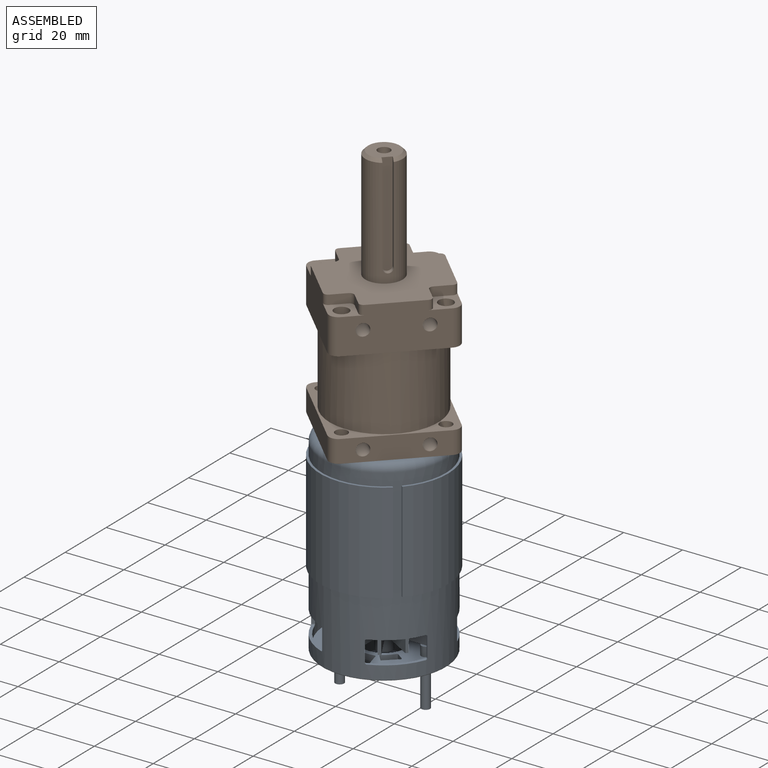
[diagram: assembled view]
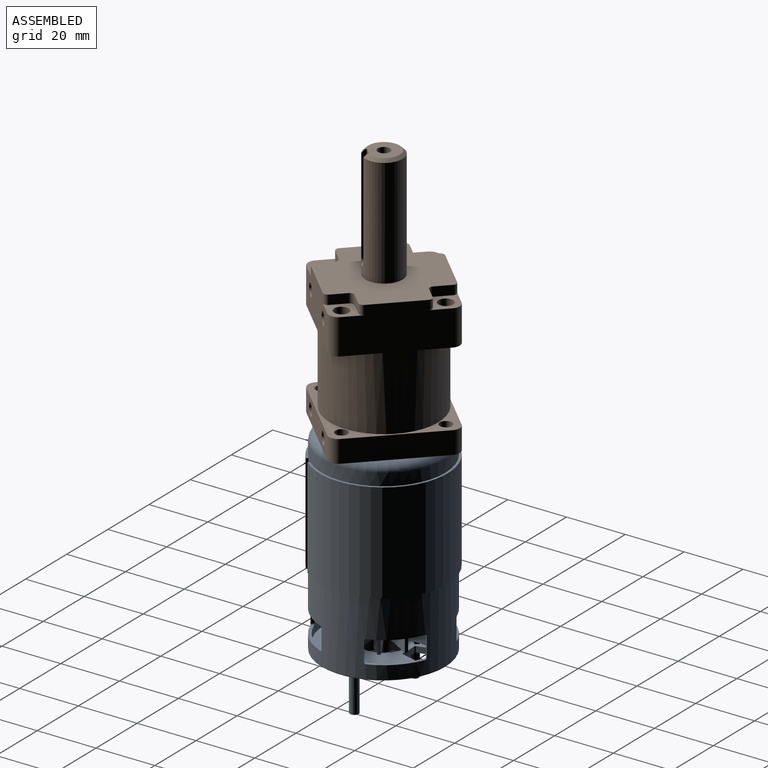
[diagram: assembled view, second angle]
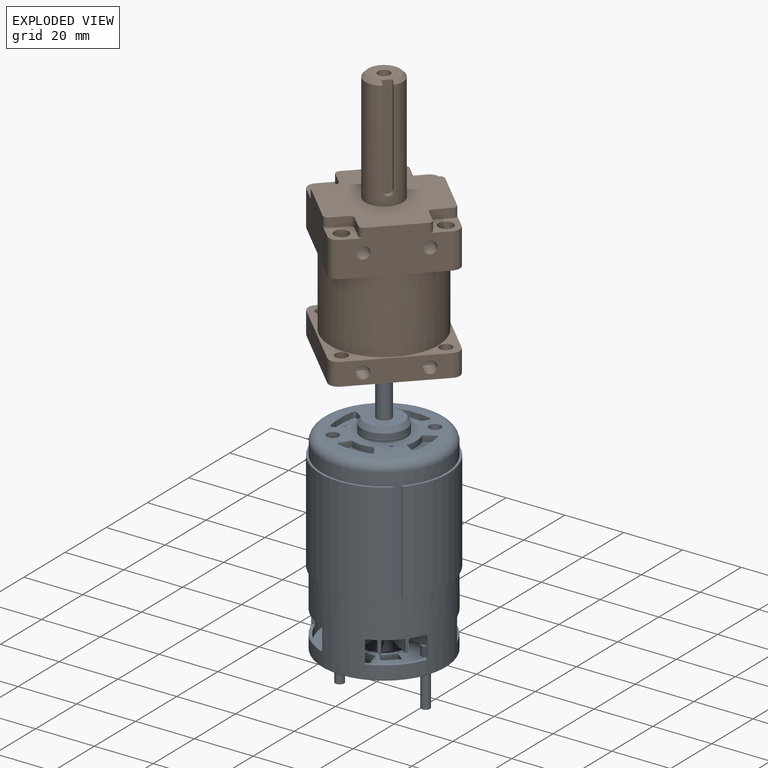
[diagram: exploded view]
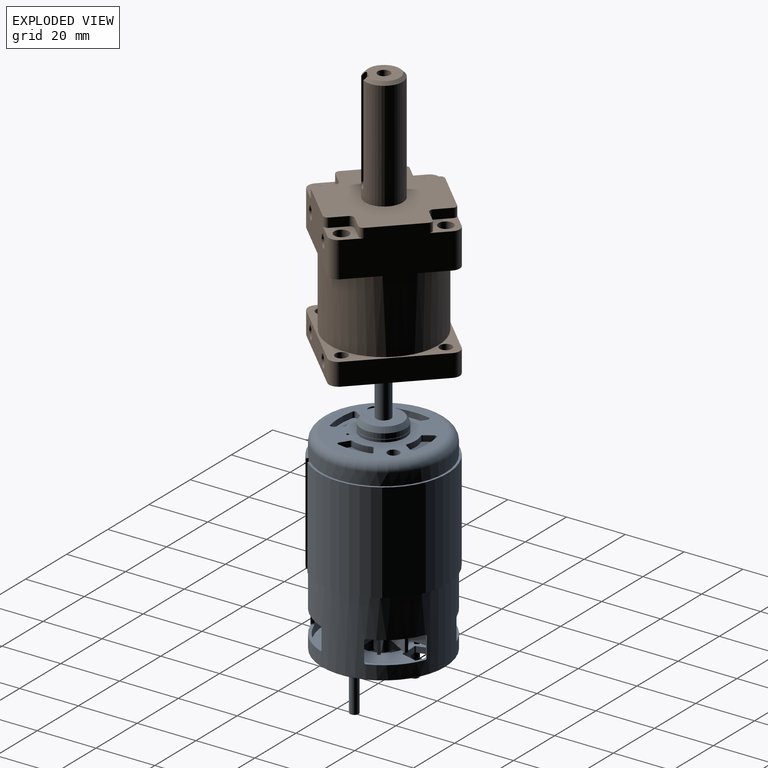
[diagram: exploded view, second angle]
ASSEMBLY  parts=2 mates=2
PART A: 282 faces, bbox 99.4x45.6x45.6 mm
  f0: cone r=0.47mm half-angle=59deg, axis (-1,0,0), area 0.8mm2, adj f1
  f1: cylinder r=0.47mm len=2.45mm, axis (-1,0,0), area 7.3mm2, adj f0,f47
  f2: cone r=1.65mm half-angle=59deg, axis (-1,0,0), area 10mm2, adj f3
  f3: cylinder r=1.65mm len=3.3mm, axis (-1,0,0), area 31.1mm2, adj f2,f281
  f4: cylinder r=2mm len=8mm, axis (-1,0,0), area 100.5mm2, adj f47,f281
  f5: cone r=1.65mm half-angle=59deg, axis (-1,0,0), area 10mm2, adj f6
  f6: cylinder r=1.65mm len=3.3mm, axis (-1,0,0), area 31.1mm2, adj f5,f280
  f7: cylinder r=2mm len=8mm, axis (-1,0,0), area 100.5mm2, adj f47,f280
  f8: cylinder r=0.5mm len=2mm, axis (-1,0,0), area 1.3mm2, adj f47,f274,f275,f279
  f9: cylinder r=0.5mm len=2mm, axis (-1,0,0), area 1.3mm2, adj f47,f273,f274,f279
  f10: cylinder r=0.75mm len=2mm, axis (-1,0,0), area 2.9mm2, adj f47,f265,f271,f272
  f11: cylinder r=25mm len=10.81mm, axis (-1,0,0), area 21.8mm2, adj f47,f262,f263,f264
  f12: cylinder r=10mm len=6.92mm, axis (-1,0,0), area 14.1mm2, adj f47,f259,f260,f264
  f13: cylinder r=0.75mm len=2mm, axis (-1,0,0), area 2.9mm2, adj f47,f255,f256,f257
  f14: cylinder r=1.5mm len=16.1mm, axis (-1,0,0), area 151.7mm2, adj f248,f249
  f15: cylinder r=1.5mm len=16.1mm, axis (-1,0,0), area 151.7mm2, adj f246,f247
  f16: cylinder r=1.5mm len=3.22mm, axis (-1,0,0), area 30.3mm2, adj f55,f56,f244
  f17: cylinder r=2.79mm len=14mm, axis (1,0,0), area 173mm2, adj f55,f61,f184,f185,f186,f187,f188,f191
  f18: torus R=20.75mm, axis (-1,0,0), area 62mm2, adj f40,f58
  f19: torus R=0.3mm, axis (-1,0,0), area 0.2mm2, adj f57,f109,f178,f181
  f20: torus R=31.82mm, axis (-1,0,0), area 4.6mm2, adj f57,f114,f174,f177
  f21: torus R=0.3mm, axis (-1,0,0), area 0.2mm2, adj f57,f119,f165,f168
  f22: cylinder r=0.5mm len=1.9mm, axis (1,0,0), area 1.6mm2, adj f57,f154,f160,f248
  f23: cylinder r=21.84mm len=5.5mm, axis (1,0,0), area 11mm2, adj f56,f57,f143,f144
  f24: cylinder r=26.95mm len=9.88mm, axis (1,0,0), area 19.9mm2, adj f56,f57,f140,f141
  f25: cylinder r=0.5mm len=2mm, axis (1,0,0), area 1.7mm2, adj f56,f57,f137,f138
  f26: cylinder r=7.5mm len=15mm, axis (-1,0,0), area 202.6mm2, adj f57,f124
  f27: cylinder r=6.5mm len=13mm, axis (-1,0,0), area 18.4mm2, adj f123,f124
  f28: cylinder r=2.2mm len=4.4mm, axis (-1,0,0), area 13.1mm2, adj f122,f123
  f29: cylinder r=0.5mm len=1.1mm, axis (1,0,0), area 1mm2, adj f100,f120,f121,f163
  f30: cylinder r=20.05mm len=40.1mm, axis (1,0,0), area 163.8mm2, adj f58,f121
  f31: cylinder r=0.5mm len=1.1mm, axis (1,0,0), area 1mm2, adj f107,f108,f121,f176
  f32: cylinder r=33.31mm len=14.46mm, axis (1,0,0), area 16mm2, adj f103,f104,f121,f167
  f33: cylinder r=7.5mm len=15mm, axis (-1,0,0), area 42mm2, adj f47,f83
  f34: cylinder r=7mm len=14mm, axis (-1,0,0), area 4.4mm2, adj f82,f83
  f35: cylinder r=7.5mm len=15mm, axis (-1,0,0), area 82.7mm2, adj f36,f82
  f36: cone r=6.53mm half-angle=30.4deg, axis (1,0,0), area 84.5mm2, adj f35,f81
  f37: cylinder r=2.5mm len=13.2mm, axis (-1,0,0), area 207.3mm2, adj f38,f81
  f38: cone r=2.15mm half-angle=30.4deg, axis (1,0,0), area 10.2mm2, adj f37,f80
  f39: cylinder r=21.8mm len=43.6mm, axis (-1,0,0), area 4568.6mm2, adj f78,f79,f182,f183
  f40: cylinder r=21.05mm len=63.7mm, axis (-1,0,0), area 3456.1mm2, adj f18,f41,f62,f63,f64,f65,f66,f67
  f41: torus R=18.05mm, axis (-1,0,0), area 591mm2, adj f40,f47
  f42: cylinder r=7mm len=14mm, axis (-1,0,0), area 235.3mm2, adj f56,f60
  f43: cylinder r=1.7mm len=3.4mm, axis (-1,0,0), area 4.8mm2, adj f59,f60
  f44: cylinder r=20.05mm len=40.1mm, axis (-1,0,0), area 987.1mm2, adj f56,f61,f62,f63,f64,f65,f66,f67
  f45: cylinder r=0.5mm len=1.9mm, axis (1,0,0), area 1.6mm2, adj f49,f50,f57,f246
  f46: cylinder r=1.5mm len=3.22mm, axis (-1,0,0), area 30.3mm2, adj f56,f233,f245
  f47: plane 36.1x36.1mm, normal (-1,0,0), area 645.3mm2, adj f1,f4,f7,f8,f9,f10,f11,f12
  f48: cylinder r=0.5mm len=1.9mm, axis (1,0,0), area 1.6mm2, adj f49,f54,f57,f246
  f49: cylinder r=26.95mm len=9.88mm, axis (1,0,0), area 18.9mm2, adj f45,f48,f57,f246
  f50: plane 7.58x1.98mm, normal (0,0.25,0.97), area 14.9mm2, adj f45,f51,f57,f246
  f51: cylinder r=0.5mm len=1.9mm, axis (1,0,0), area 1.2mm2, adj f50,f52,f57,f246
  f52: cylinder r=21.84mm len=5.5mm, axis (1,0,0), area 10.5mm2, adj f51,f53,f57,f246
  f53: cylinder r=0.5mm len=1.9mm, axis (1,0,0), area 1.2mm2, adj f52,f54,f57,f246
  f54: plane 7.52x2.21mm, normal (0,0.28,-0.96), area 14.9mm2, adj f48,f53,f57,f246
  f55: plane 10.95x1mm, normal (1,0,0), area 10.9mm2, adj f16,f17,f201,f202
  f56: plane 40.1x40.1mm, normal (-1,0,0), area 903.8mm2, adj f16,f23,f24,f25,f42,f44,f46,f125
  f57: plane 35.8x35.77mm, normal (1,0,0), area 373mm2, adj f19,f20,f21,f22,f23,f24,f25,f26
  f58: plane 41.5x41.5mm, normal (1,0,0), area 89.7mm2, adj f18,f30
  f59: plane 3.4x3.4mm, normal (-1,0,0), area 9.1mm2, adj f43
  f60: plane 14x14mm, normal (-1,0,0), area 144.9mm2, adj f42,f43
  f61: plane 40.1x40.1mm, normal (1,0,0), area 1238.5mm2, adj f17,f44
  f62: plane 12.58x12.58mm, normal (1,0,0), area 17.2mm2, adj f40,f44,f63,f69
  f63: cylinder r=0.5mm len=1.3mm, axis (0,0.71,0.71), area 0.9mm2, adj f40,f44,f62,f64
  f64: plane 6.7x0.78mm, normal (0,0.71,-0.71), area 7.4mm2, adj f40,f44,f63,f65
  f65: cylinder r=0.5mm len=1.3mm, axis (0,0.71,0.71), area 0.9mm2, adj f40,f44,f64,f66
  f66: plane 12.58x12.58mm, normal (-1,0,0), area 17.2mm2, adj f40,f44,f65,f67
  f67: cylinder r=0.5mm len=1.3mm, axis (0,0.71,0.71), area 0.9mm2, adj f40,f44,f66,f68
  f68: plane 6.7x0.78mm, normal (0,-0.71,0.71), area 7.4mm2, adj f40,f44,f67,f69
  f69: cylinder r=0.5mm len=1.3mm, axis (0,0.71,0.71), area 0.9mm2, adj f40,f44,f62,f68
  f70: cylinder r=0.5mm len=1.3mm, axis (0,0.71,0.71), area 0.9mm2, adj f40,f44,f71,f77
  f71: plane 6.7x0.78mm, normal (0,-0.71,0.71), area 7.4mm2, adj f40,f44,f70,f72
  f72: cylinder r=0.5mm len=1.3mm, axis (0,0.71,0.71), area 0.9mm2, adj f40,f44,f71,f73
  f73: plane 12.58x12.58mm, normal (-1,0,0), area 17.2mm2, adj f40,f44,f72,f74
  f74: cylinder r=0.5mm len=1.3mm, axis (0,0.71,0.71), area 0.9mm2, adj f40,f44,f73,f75
  f75: plane 6.7x0.78mm, normal (0,0.71,-0.71), area 7.4mm2, adj f40,f44,f74,f76
  f76: cylinder r=0.5mm len=1.3mm, axis (0,0.71,0.71), area 0.9mm2, adj f40,f44,f75,f77
  f77: plane 12.58x12.58mm, normal (1,0,0), area 17.2mm2, adj f40,f44,f70,f76
  f78: plane 43.6x43.6mm, normal (-1,0,0), area 99mm2, adj f39,f40,f182,f183
  f79: plane 43.6x43.6mm, normal (1,0,0), area 99mm2, adj f39,f40,f182,f183
  f80: plane 4.29x4.29mm, normal (-1,0,0), area 14.5mm2, adj f38
  f81: plane 13.06x13.06mm, normal (-1,0,0), area 114.3mm2, adj f36,f37
  f82: plane 15x15mm, normal (1,0,0), area 22.8mm2, adj f34,f35
  f83: plane 15x15mm, normal (-1,0,0), area 22.8mm2, adj f33,f34
  f84: plane 12.58x12.58mm, normal (1,0,0), area 17.2mm2, adj f40,f44,f85,f91
  f85: cylinder r=0.5mm len=1.3mm, axis (0,-0.71,0.71), area 0.9mm2, adj f40,f44,f84,f86
  f86: plane 6.7x0.78mm, normal (0,0.71,0.71), area 7.4mm2, adj f40,f44,f85,f88
  f87: plane 12.58x12.58mm, normal (-1,0,0), area 17.2mm2, adj f40,f44,f88,f89
  f88: cylinder r=0.5mm len=1.3mm, axis (0,-0.71,0.71), area 0.9mm2, adj f40,f44,f86,f87
  f89: cylinder r=0.5mm len=1.3mm, axis (0,-0.71,0.71), area 0.9mm2, adj f40,f44,f87,f90
  f90: plane 6.7x0.78mm, normal (0,-0.71,-0.71), area 7.4mm2, adj f40,f44,f89,f91
  f91: cylinder r=0.5mm len=1.3mm, axis (0,-0.71,0.71), area 0.9mm2, adj f40,f44,f84,f90
  f92: cylinder r=0.5mm len=1.3mm, axis (0,-0.71,0.71), area 0.9mm2, adj f40,f44,f93,f99
  f93: plane 6.7x0.78mm, normal (0,-0.71,-0.71), area 7.4mm2, adj f40,f44,f92,f94
  f94: cylinder r=0.5mm len=1.3mm, axis (0,-0.71,0.71), area 0.9mm2, adj f40,f44,f93,f98
  f95: cylinder r=0.5mm len=1.3mm, axis (0,-0.71,0.71), area 0.9mm2, adj f40,f44,f96,f98
  f96: plane 6.7x0.78mm, normal (0,0.71,0.71), area 7.4mm2, adj f40,f44,f95,f97
  f97: cylinder r=0.5mm len=1.3mm, axis (0,-0.71,0.71), area 0.9mm2, adj f40,f44,f96,f99
  f98: plane 12.58x12.58mm, normal (-1,0,0), area 17.2mm2, adj f40,f44,f94,f95
  f99: plane 12.58x12.58mm, normal (1,0,0), area 17.2mm2, adj f40,f44,f92,f97
  f100: plane 1.81x1.1mm, normal (0,0.44,-0.9), area 2.2mm2, adj f29,f101,f121,f161
  f101: plane 8.08x8.08mm, normal (0,-0.71,-0.71), area 12.6mm2, adj f100,f102,f121,f162
  f102: plane 1.81x1.1mm, normal (0,-0.9,0.44), area 2.2mm2, adj f101,f103,f121,f164
  f103: cylinder r=0.5mm len=1.1mm, axis (1,0,0), area 1mm2, adj f32,f102,f121,f166
  f104: cylinder r=0.5mm len=1.1mm, axis (1,0,0), area 1mm2, adj f32,f105,f121,f169
  f105: plane 1.81x1.1mm, normal (0,0.9,0.44), area 2.2mm2, adj f104,f106,f121,f171
  f106: plane 8.08x8.08mm, normal (0,0.71,-0.71), area 12.6mm2, adj f105,f107,f121,f173
  f107: plane 1.81x1.1mm, normal (0,-0.44,-0.9), area 2.2mm2, adj f31,f106,f121,f175
  f108: cylinder r=32.02mm len=14.46mm, axis (1,0,0), area 16mm2, adj f31,f109,f121,f178
  f109: cylinder r=0.5mm len=1.1mm, axis (1,0,0), area 1mm2, adj f19,f108,f110,f121
  f110: plane 1.81x1.1mm, normal (0,-0.44,0.9), area 2.2mm2, adj f109,f111,f121,f181
  f111: plane 8.08x8.08mm, normal (0,0.71,0.71), area 12.6mm2, adj f110,f112,f121,f180
  f112: plane 1.81x1.1mm, normal (0,0.9,-0.44), area 2.2mm2, adj f111,f113,f121,f179
  f113: cylinder r=0.5mm len=1.1mm, axis (1,0,0), area 1mm2, adj f112,f114,f121,f177
  f114: cylinder r=32.02mm len=14.46mm, axis (1,0,0), area 16mm2, adj f20,f113,f115,f121
  f115: cylinder r=0.5mm len=1.1mm, axis (1,0,0), area 1mm2, adj f114,f116,f121,f174
  f116: plane 1.81x1.1mm, normal (0,-0.9,-0.44), area 2.2mm2, adj f115,f117,f121,f172
  f117: plane 8.08x8.08mm, normal (0,-0.71,0.71), area 12.6mm2, adj f116,f118,f121,f170
  f118: plane 1.81x1.1mm, normal (0,0.44,0.9), area 2.2mm2, adj f117,f119,f121,f168
  f119: cylinder r=0.5mm len=1.1mm, axis (1,0,0), area 1mm2, adj f21,f118,f120,f121
  f120: cylinder r=32.02mm len=14.46mm, axis (1,0,0), area 16mm2, adj f29,f119,f121,f165
  f121: plane 40.1x40.1mm, normal (1,0,0), area 345mm2, adj f29,f30,f31,f32,f100,f101,f102,f103
  f122: plane 4.4x4.4mm, normal (1,0,0), area 15.2mm2, adj f28
  f123: plane 13x13mm, normal (1,0,0), area 117.5mm2, adj f27,f28
  f124: plane 15x15mm, normal (1,0,0), area 44mm2, adj f26,f27
  f125: cylinder r=0.5mm len=2mm, axis (1,0,0), area 1.7mm2, adj f56,f57,f126,f132
  f126: cylinder r=26.95mm len=9.88mm, axis (1,0,0), area 19.9mm2, adj f56,f57,f125,f127
  f127: cylinder r=0.5mm len=2mm, axis (1,0,0), area 1.7mm2, adj f56,f57,f126,f128
  f128: plane 7.55x2.1mm, normal (0,-0.96,0.27), area 15.7mm2, adj f56,f57,f127,f129
  f129: cylinder r=0.5mm len=2mm, axis (1,0,0), area 1.3mm2, adj f56,f57,f128,f130
  f130: cylinder r=21.84mm len=5.5mm, axis (1,0,0), area 11mm2, adj f56,f57,f129,f131
  f131: cylinder r=0.5mm len=2mm, axis (1,0,0), area 1.3mm2, adj f56,f57,f130,f132
  f132: plane 7.55x2.1mm, normal (0,0.96,0.27), area 15.7mm2, adj f56,f57,f125,f131
  f133: plane 2.29x2mm, normal (0,0.82,-0.57), area 5.6mm2, adj f56,f57,f134,f139
  f134: cylinder r=0.5mm len=2mm, axis (1,0,0), area 2.5mm2, adj f56,f57,f133,f135
  f135: plane 3.65x3.62mm, normal (0,-0.71,-0.7), area 10.3mm2, adj f56,f57,f134,f136
  f136: cylinder r=0.5mm len=2mm, axis (1,0,0), area 0.7mm2, adj f56,f57,f135,f137
  f137: plane 2.13x2mm, normal (0,-0.65,0.76), area 5.6mm2, adj f25,f56,f57,f136
  f138: cylinder r=8.54mm len=2.91mm, axis (1,0,0), area 8.3mm2, adj f25,f56,f57,f139
  f139: cylinder r=0.5mm len=2mm, axis (1,0,0), area 1.6mm2, adj f56,f57,f133,f138
  f140: cylinder r=0.5mm len=2mm, axis (1,0,0), area 1.7mm2, adj f24,f56,f57,f145
  f141: cylinder r=0.5mm len=2mm, axis (1,0,0), area 1.7mm2, adj f24,f56,f57,f142
  f142: plane 7.55x2.1mm, normal (0,0.96,-0.27), area 15.7mm2, adj f56,f57,f141,f143
  f143: cylinder r=0.5mm len=2mm, axis (1,0,0), area 1.3mm2, adj f23,f56,f57,f142
  f144: cylinder r=0.5mm len=2mm, axis (1,0,0), area 1.3mm2, adj f23,f56,f57,f145
  f145: plane 7.55x2.1mm, normal (0,-0.96,-0.27), area 15.7mm2, adj f56,f57,f140,f144
  f146: cylinder r=8.54mm len=2.94mm, axis (1,0,0), area 8.3mm2, adj f56,f57,f147,f153
  f147: cylinder r=0.5mm len=2mm, axis (1,0,0), area 1.7mm2, adj f56,f57,f146,f148
  f148: plane 2.16x2mm, normal (0,-0.77,0.64), area 5.6mm2, adj f56,f57,f147,f149
  f149: cylinder r=0.5mm len=2mm, axis (1,0,0), area 0.7mm2, adj f56,f57,f148,f150
  f150: plane 3.7x3.56mm, normal (0,0.69,0.72), area 10.3mm2, adj f56,f57,f149,f151
  f151: cylinder r=0.5mm len=2mm, axis (1,0,0), area 2.5mm2, adj f56,f57,f150,f152
  f152: plane 2.26x2mm, normal (0,0.58,-0.81), area 5.6mm2, adj f56,f57,f151,f153
  f153: cylinder r=0.5mm len=2mm, axis (1,0,0), area 1.6mm2, adj f56,f57,f146,f152
  f154: cylinder r=26.95mm len=9.88mm, axis (1,0,0), area 18.9mm2, adj f22,f57,f155,f248
  f155: cylinder r=0.5mm len=1.9mm, axis (1,0,0), area 1.6mm2, adj f57,f154,f156,f248
  f156: plane 7.58x1.98mm, normal (0,-0.25,-0.97), area 14.9mm2, adj f57,f155,f157,f248
  f157: cylinder r=0.5mm len=1.9mm, axis (1,0,0), area 1.2mm2, adj f57,f156,f158,f248
  f158: cylinder r=21.84mm len=5.5mm, axis (1,0,0), area 10.5mm2, adj f57,f157,f159,f248
  f159: cylinder r=0.5mm len=1.9mm, axis (1,0,0), area 1.2mm2, adj f57,f158,f160,f248
  f160: plane 7.52x2.21mm, normal (0,-0.28,0.96), area 14.9mm2, adj f22,f57,f159,f248
  f161: cylinder r=0.2mm len=2.02mm, axis (0,-0.9,-0.44), area 0.7mm2, adj f57,f100,f162,f163
  f162: cylinder r=0.2mm len=8.43mm, axis (0,-0.71,0.71), area 3.6mm2, adj f57,f101,f161,f164
  f163: torus R=0.3mm, axis (-1,0,0), area 0.2mm2, adj f29,f57,f161,f165
  f164: cylinder r=0.2mm len=2.02mm, axis (0,0.44,0.9), area 0.7mm2, adj f57,f102,f162,f166
  f165: torus R=31.82mm, axis (-1,0,0), area 4.6mm2, adj f21,f57,f120,f163
  f166: torus R=0.3mm, axis (-1,0,0), area 0.2mm2, adj f57,f103,f164,f167
  f167: torus R=33.11mm, axis (-1,0,0), area 4.6mm2, adj f32,f57,f166,f169
  f168: cylinder r=0.2mm len=2.02mm, axis (0,0.9,-0.44), area 0.7mm2, adj f21,f57,f118,f170
  f169: torus R=0.3mm, axis (-1,0,0), area 0.2mm2, adj f57,f104,f167,f171
  f170: cylinder r=0.2mm len=8.43mm, axis (0,0.71,0.71), area 3.6mm2, adj f57,f117,f168,f172
  f171: cylinder r=0.2mm len=2.02mm, axis (0,0.44,-0.9), area 0.7mm2, adj f57,f105,f169,f173
  f172: cylinder r=0.2mm len=2.02mm, axis (0,-0.44,0.9), area 0.7mm2, adj f57,f116,f170,f174
  f173: cylinder r=0.2mm len=8.43mm, axis (0,-0.71,-0.71), area 3.6mm2, adj f57,f106,f171,f175
  f174: torus R=0.3mm, axis (-1,0,0), area 0.2mm2, adj f20,f57,f115,f172
  f175: cylinder r=0.2mm len=2.02mm, axis (0,-0.9,0.44), area 0.7mm2, adj f57,f107,f173,f176
  f176: torus R=0.3mm, axis (-1,0,0), area 0.2mm2, adj f31,f57,f175,f178
  f177: torus R=0.3mm, axis (-1,0,0), area 0.2mm2, adj f20,f57,f113,f179
  f178: torus R=31.82mm, axis (-1,0,0), area 4.6mm2, adj f19,f57,f108,f176
  f179: cylinder r=0.2mm len=2.02mm, axis (0,-0.44,-0.9), area 0.7mm2, adj f57,f112,f177,f180
  f180: cylinder r=0.2mm len=8.43mm, axis (0,0.71,-0.71), area 3.6mm2, adj f57,f111,f179,f181
  f181: cylinder r=0.2mm len=2.02mm, axis (0,0.9,0.44), area 0.7mm2, adj f19,f57,f110,f180
  f182: plane 34x0.53mm, normal (0,0.71,-0.71), area 25.5mm2, adj f39,f40,f78,f79
  f183: plane 34x0.53mm, normal (0,-0.71,0.71), area 25.5mm2, adj f39,f40,f78,f79
  f184: plane 5.58x5.58mm, normal (1,0,0), area 24.4mm2, adj f17
  f185: plane 12.36x1mm, normal (-1,0,0), area 12.3mm2, adj f17,f186,f188,f189
  f186: plane 12.35x6mm, normal (0,-1,0), area 74.1mm2, adj f17,f185,f187,f189
  f187: plane 12.36x1mm, normal (1,0,0), area 12.3mm2, adj f17,f186,f188,f189
  f188: plane 12.36x6mm, normal (0,1,0), area 74.2mm2, adj f17,f185,f187,f189
  f189: plane 6x1mm, normal (0,0,1), area 6mm2, adj f185,f186,f187,f188
  f190: plane 6x0.87mm, normal (0,0.5,0.87), area 6mm2, adj f191,f192,f193,f194
  f191: plane 10.7x6.18mm, normal (0,-0.87,0.5), area 74.1mm2, adj f17,f190,f193,f194
  f192: plane 10.7x6.18mm, normal (0,0.87,-0.5), area 74.2mm2, adj f17,f190,f193,f194
  f193: plane 11.2x7.04mm, normal (-1,0,0), area 12.3mm2, adj f17,f190,f191,f192
  f194: plane 11.2x7.04mm, normal (1,0,0), area 12.3mm2, adj f17,f190,f191,f192
  f195: plane 6x0.87mm, normal (0,0.87,0.5), area 6mm2, adj f196,f197,f198,f199
  f196: plane 10.7x6.18mm, normal (0,-0.5,0.87), area 74.1mm2, adj f17,f195,f198,f199
  f197: plane 10.7x6.18mm, normal (0,0.5,-0.87), area 74.2mm2, adj f17,f195,f198,f199
  f198: plane 11.2x7.05mm, normal (-1,0,0), area 12.3mm2, adj f17,f195,f196,f197
  f199: plane 11.2x7.05mm, normal (1,0,0), area 12.3mm2, adj f17,f195,f196,f197
  f200: plane 6x1mm, normal (0,1,0), area 6mm2, adj f201,f202,f203,f244
  f201: plane 12.35x6mm, normal (0,0,1), area 74.1mm2, adj f17,f55,f200,f203,f244
  f202: plane 12.36x6mm, normal (0,0,-1), area 74.2mm2, adj f17,f55,f200,f203,f244
  f203: plane 12.36x1mm, normal (-1,0,0), area 12.3mm2, adj f17,f200,f201,f202
  f204: plane 6x0.87mm, normal (0,0.87,-0.5), area 6mm2, adj f205,f206,f207,f208
  f205: plane 10.7x6.18mm, normal (0,0.5,0.87), area 74.1mm2, adj f17,f204,f207,f208
  f206: plane 10.7x6.18mm, normal (0,-0.5,-0.87), area 74.2mm2, adj f17,f204,f207,f208
  f207: plane 11.2x7.04mm, normal (-1,0,0), area 12.3mm2, adj f17,f204,f205,f206
  f208: plane 11.2x7.04mm, normal (1,0,0), area 12.3mm2, adj f17,f204,f205,f206
  f209: plane 6x0.87mm, normal (0,0.5,-0.87), area 6mm2, adj f210,f211,f212,f213
  f210: plane 10.7x6.18mm, normal (0,0.87,0.5), area 74.1mm2, adj f17,f209,f212,f213
  f211: plane 10.7x6.18mm, normal (0,-0.87,-0.5), area 74.2mm2, adj f17,f209,f212,f213
  f212: plane 11.2x7.05mm, normal (-1,0,0), area 12.3mm2, adj f17,f209,f210,f211
  f213: plane 11.2x7.05mm, normal (1,0,0), area 12.3mm2, adj f17,f209,f210,f211
  f214: plane 6x1mm, normal (0,0,-1), area 6mm2, adj f215,f216,f217,f218
  f215: plane 12.35x6mm, normal (0,1,0), area 74.1mm2, adj f17,f214,f217,f218
  f216: plane 12.36x6mm, normal (0,-1,0), area 74.2mm2, adj f17,f214,f217,f218
  f217: plane 12.36x1mm, normal (-1,0,0), area 12.3mm2, adj f17,f214,f215,f216
  f218: plane 12.36x1mm, normal (1,0,0), area 12.3mm2, adj f17,f214,f215,f216
  f219: plane 6x0.87mm, normal (0,-0.5,-0.87), area 6mm2, adj f220,f221,f222,f223
  f220: plane 10.7x6.18mm, normal (0,0.87,-0.5), area 74.1mm2, adj f17,f219,f222,f223
  f221: plane 10.7x6.18mm, normal (0,-0.87,0.5), area 74.2mm2, adj f17,f219,f222,f223
  f222: plane 11.2x7.04mm, normal (-1,0,0), area 12.3mm2, adj f17,f219,f220,f221
  f223: plane 11.2x7.04mm, normal (1,0,0), area 12.3mm2, adj f17,f219,f220,f221
  f224: plane 6x0.87mm, normal (0,-0.87,-0.5), area 6mm2, adj f225,f226,f227,f228
  f225: plane 10.7x6.18mm, normal (0,0.5,-0.87), area 74.1mm2, adj f17,f224,f227,f228
  f226: plane 10.7x6.18mm, normal (0,-0.5,0.87), area 74.2mm2, adj f17,f224,f227,f228
  f227: plane 11.2x7.05mm, normal (-1,0,0), area 12.3mm2, adj f17,f224,f225,f226
  f228: plane 11.2x7.05mm, normal (1,0,0), area 12.3mm2, adj f17,f224,f225,f226
  f229: plane 6x1mm, normal (0,-1,0), area 6mm2, adj f230,f231,f232,f245
  f230: plane 12.35x6mm, normal (0,0,-1), area 74.1mm2, adj f17,f229,f232,f233,f245
  f231: plane 12.36x6mm, normal (0,0,1), area 74.2mm2, adj f17,f229,f232,f233,f245
  f232: plane 12.36x1mm, normal (-1,0,0), area 12.3mm2, adj f17,f229,f230,f231
  f233: plane 10.02x1mm, normal (1,0,0), area 9.9mm2, adj f17,f46,f230,f231
  f234: plane 6x0.87mm, normal (0,-0.87,0.5), area 6mm2, adj f235,f236,f237,f238
  f235: plane 10.7x6.18mm, normal (0,-0.5,-0.87), area 74.1mm2, adj f17,f234,f237,f238
  f236: plane 10.7x6.18mm, normal (0,0.5,0.87), area 74.2mm2, adj f17,f234,f237,f238
  f237: plane 11.2x7.04mm, normal (-1,0,0), area 12.3mm2, adj f17,f234,f235,f236
  f238: plane 11.2x7.04mm, normal (1,0,0), area 12.3mm2, adj f17,f234,f235,f236
  f239: plane 11.2x7.05mm, normal (1,0,0), area 12.3mm2, adj f17,f241,f242,f243
  f240: plane 11.2x7.05mm, normal (-1,0,0), area 12.3mm2, adj f17,f241,f242,f243
  f241: plane 10.7x6.18mm, normal (0,-0.87,-0.5), area 74.1mm2, adj f17,f239,f240,f243
  f242: plane 10.7x6.18mm, normal (0,0.87,0.5), area 74.2mm2, adj f17,f239,f240,f243
  f243: plane 6x0.87mm, normal (0,-0.5,0.87), area 6mm2, adj f239,f240,f241,f242
  f244: plane 3x2.91mm, normal (-1,0,0), area 5.6mm2, adj f16,f200,f201,f202
  f245: plane 3x2.93mm, normal (-1,0,0), area 4.7mm2, adj f46,f229,f230,f231
  f246: plane 10.69x9.04mm, normal (1,0,0), area 68.8mm2, adj f15,f45,f48,f49,f50,f51,f52,f53
  f247: plane 3x3mm, normal (1,0,0), area 7.1mm2, adj f15
  f248: plane 10.69x9.04mm, normal (1,0,0), area 68.8mm2, adj f14,f22,f154,f155,f156,f157,f158,f159
  f249: plane 3x3mm, normal (1,0,0), area 7.1mm2, adj f14
  f250: cylinder r=0.75mm len=2mm, axis (-1,0,0), area 2.9mm2, adj f47,f251,f256,f257
  f251: plane 2.77x2mm, normal (0,-0.55,0.84), area 6.6mm2, adj f47,f250,f252,f257
  f252: cylinder r=0.5mm len=2mm, axis (-1,0,0), area 1.3mm2, adj f47,f251,f253,f257
  f253: cylinder r=10mm len=6.92mm, axis (-1,0,0), area 14.1mm2, adj f47,f252,f254,f257
  f254: cylinder r=0.5mm len=2mm, axis (-1,0,0), area 1.3mm2, adj f47,f253,f255,f257
  f255: plane 2.77x2mm, normal (0,-0.55,-0.84), area 6.6mm2, adj f13,f47,f254,f257
  f256: cylinder r=25mm len=10.81mm, axis (-1,0,0), area 21.8mm2, adj f13,f47,f250,f257
  f257: plane 11.98x4.73mm, normal (-1,0,0), area 43.9mm2, adj f13,f250,f251,f252,f253,f254,f255,f256
  f258: plane 2.77x2mm, normal (0,0.84,0.55), area 6.6mm2, adj f47,f259,f263,f264
  f259: cylinder r=0.5mm len=2mm, axis (-1,0,0), area 1.3mm2, adj f12,f47,f258,f264
  f260: cylinder r=0.5mm len=2mm, axis (-1,0,0), area 1.3mm2, adj f12,f47,f261,f264
  f261: plane 2.77x2mm, normal (0,-0.84,0.55), area 6.6mm2, adj f47,f260,f262,f264
  f262: cylinder r=0.75mm len=2mm, axis (-1,0,0), area 2.9mm2, adj f11,f47,f261,f264
  f263: cylinder r=0.75mm len=2mm, axis (-1,0,0), area 2.9mm2, adj f11,f47,f258,f264
  f264: plane 11.98x4.73mm, normal (-1,0,0), area 43.9mm2, adj f11,f12,f258,f259,f260,f261,f262,f263
  f265: plane 2.77x2mm, normal (0,0.55,-0.84), area 6.6mm2, adj f10,f47,f266,f272
  f266: cylinder r=0.5mm len=2mm, axis (-1,0,0), area 1.3mm2, adj f47,f265,f267,f272
  f267: cylinder r=10mm len=6.92mm, axis (-1,0,0), area 14.1mm2, adj f47,f266,f268,f272
  f268: cylinder r=0.5mm len=2mm, axis (-1,0,0), area 1.3mm2, adj f47,f267,f269,f272
  f269: plane 2.77x2mm, normal (0,0.55,0.84), area 6.6mm2, adj f47,f268,f270,f272
  f270: cylinder r=0.75mm len=2mm, axis (-1,0,0), area 2.9mm2, adj f47,f269,f271,f272
  f271: cylinder r=25mm len=10.81mm, axis (-1,0,0), area 21.8mm2, adj f10,f47,f270,f272
  f272: plane 11.98x4.73mm, normal (-1,0,0), area 43.9mm2, adj f10,f265,f266,f267,f268,f269,f270,f271
  f273: plane 2.77x2mm, normal (0,-0.84,-0.55), area 6.6mm2, adj f9,f47,f278,f279
  f274: cylinder r=10mm len=6.92mm, axis (-1,0,0), area 14.1mm2, adj f8,f9,f47,f279
  f275: plane 2.77x2mm, normal (0,0.84,-0.55), area 6.6mm2, adj f8,f47,f276,f279
  f276: cylinder r=0.75mm len=2mm, axis (-1,0,0), area 2.9mm2, adj f47,f275,f277,f279
  f277: cylinder r=25mm len=10.81mm, axis (-1,0,0), area 21.8mm2, adj f47,f276,f278,f279
  f278: cylinder r=0.75mm len=2mm, axis (-1,0,0), area 2.9mm2, adj f47,f273,f277,f279
  f279: plane 11.98x4.73mm, normal (-1,0,0), area 43.9mm2, adj f8,f9,f273,f274,f275,f276,f277,f278
  f280: plane 4x4mm, normal (-1,0,0), area 4mm2, adj f6,f7
  f281: plane 4x4mm, normal (-1,0,0), area 4mm2, adj f3,f4
PART B: 86 faces, bbox 38.1x38.1x86.4 mm
  f0: cylinder r=2.1mm len=7.62mm, axis (0,-1,0), area 100.5mm2, adj f1,f47
  f1: cone r=2.1mm half-angle=59deg, axis (0,-1,0), area 16.2mm2, adj f0
  f2: cylinder r=2.1mm len=7.62mm, axis (0,-1,0), area 100.5mm2, adj f3,f47
  f3: cone r=2.1mm half-angle=59deg, axis (0,-1,0), area 16.2mm2, adj f2
  f4: cylinder r=2.1mm len=7.62mm, axis (0,-1,0), area 100.5mm2, adj f5,f41
  f5: cone r=2.1mm half-angle=59deg, axis (0,-1,0), area 16.2mm2, adj f4
  f6: cylinder r=2.1mm len=7.62mm, axis (0,-1,0), area 100.5mm2, adj f7,f41
  f7: cone r=2.1mm half-angle=59deg, axis (0,-1,0), area 16.2mm2, adj f6
  f8: cylinder r=2.1mm len=7.62mm, axis (0,1,0), area 100.5mm2, adj f9,f51
  f9: cone r=2.1mm half-angle=59deg, axis (0,1,0), area 16.2mm2, adj f8
  f10: cylinder r=2.1mm len=7.62mm, axis (0,1,0), area 100.5mm2, adj f11,f51
  f11: cone r=2.1mm half-angle=59deg, axis (0,1,0), area 16.2mm2, adj f10
  f12: cylinder r=2.1mm len=7.62mm, axis (0,1,0), area 100.5mm2, adj f13,f39
  f13: cone r=2.1mm half-angle=59deg, axis (0,1,0), area 16.2mm2, adj f12
  f14: cylinder r=2.1mm len=7.62mm, axis (0,1,0), area 100.5mm2, adj f15,f39
  f15: cone r=2.1mm half-angle=59deg, axis (0,1,0), area 16.2mm2, adj f14
  f16: cylinder r=2.1mm len=7.62mm, axis (0,0,1), area 100.5mm2, adj f30,f31
  f17: cylinder r=2.1mm len=7.62mm, axis (0,0,1), area 100.5mm2, adj f30,f31
  f18: cylinder r=2.1mm len=7.62mm, axis (0,0,1), area 100.5mm2, adj f30,f31
  f19: cylinder r=2.1mm len=7.62mm, axis (0,0,1), area 100.5mm2, adj f30,f31
  f20: cylinder r=2.5mm len=12.07mm, axis (0,0,1), area 189.5mm2, adj f36,f59,f81
  f21: cylinder r=2.5mm len=12.07mm, axis (0,0,1), area 189.5mm2, adj f36,f62,f80
  f22: cylinder r=2.5mm len=12.07mm, axis (0,0,1), area 189.5mm2, adj f36,f65,f79
  f23: cylinder r=2.5mm len=12.07mm, axis (0,0,1), area 189.5mm2, adj f36,f56,f78
  f24: cylinder r=18.5mm len=37mm, axis (0,0,1), area 2952.5mm2, adj f30,f36,f78,f79,f80,f81
  f25: cylinder r=2.1mm len=14mm, axis (0,0,1), area 184.7mm2, adj f26,f42
  f26: cone r=2.1mm half-angle=59deg, axis (0,0,1), area 16.2mm2, adj f25
  f27: cone r=5.35mm half-angle=45deg, axis (0,0,-1), area 47.4mm2, adj f28,f42,f43,f44
  f28: cylinder r=6.35mm len=37.1mm, axis (0,0,-1), area 1373.7mm2, adj f27,f29,f37,f43,f44
  f29: cylinder r=1.59mm len=3.18mm, axis (0,-1,0), area 8.4mm2, adj f28,f43,f44,f45
  f30: plane 38.1x38.1mm, normal (0,0,1), area 312.3mm2, adj f16,f17,f18,f19,f24,f46,f47,f48
  f31: plane 38.1x38.1mm, normal (0,0,-1), area 1368.3mm2, adj f16,f17,f18,f19,f46,f47,f48,f49
  f32: cylinder r=3.17mm len=12.07mm, axis (0,0,-1), area 60.2mm2, adj f36,f40,f41,f65
  f33: cylinder r=3.17mm len=12.07mm, axis (0,0,-1), area 60.2mm2, adj f36,f38,f41,f62
  f34: cylinder r=3.17mm len=12.07mm, axis (0,0,-1), area 60.2mm2, adj f36,f38,f39,f59
  f35: cylinder r=3.17mm len=12.07mm, axis (0,0,-1), area 60.2mm2, adj f36,f39,f40,f56
  f36: plane 38.1x38.1mm, normal (0,0,-1), area 289.4mm2, adj f20,f21,f22,f23,f24,f32,f33,f34
  f37: plane 38.1x38.1mm, normal (0,0,1), area 1034mm2, adj f28,f38,f39,f40,f41,f54,f55,f57
  f38: plane 31.75x15.24mm, normal (1,0,0), area 440.5mm2, adj f33,f34,f36,f37,f59,f62,f68,f69
  f39: plane 31.75x15.24mm, normal (0,1,0), area 412.8mm2, adj f12,f14,f34,f35,f36,f37,f56,f59
  f40: plane 31.75x15.24mm, normal (-1,0,0), area 440.5mm2, adj f32,f35,f36,f37,f56,f65,f74,f76
  f41: plane 31.75x15.24mm, normal (0,-1,0), area 412.8mm2, adj f4,f6,f32,f33,f36,f37,f62,f65
  f42: plane 10.7x10.46mm, normal (0,0,1), area 73.8mm2, adj f25,f27,f43,f44,f45
  f43: plane 33.44x1.61mm, normal (-1,0,0), area 52.5mm2, adj f27,f28,f29,f42,f45
  f44: plane 33.44x1.61mm, normal (1,0,0), area 52.5mm2, adj f27,f28,f29,f42,f45
  f45: plane 35x3.18mm, normal (0,1,0), area 110mm2, adj f29,f42,f43,f44
  f46: cylinder r=3.17mm len=7.62mm, axis (0,0,1), area 38mm2, adj f30,f31,f47,f53
  f47: plane 31.75x7.62mm, normal (0,-1,0), area 214.2mm2, adj f0,f2,f30,f31,f46,f48
  f48: cylinder r=3.17mm len=7.62mm, axis (0,0,1), area 38mm2, adj f30,f31,f47,f49
  f49: plane 31.75x7.62mm, normal (-1,0,0), area 241.9mm2, adj f30,f31,f48,f50
  f50: cylinder r=3.17mm len=7.62mm, axis (0,0,1), area 38mm2, adj f30,f31,f49,f51
  f51: plane 31.75x7.62mm, normal (0,1,0), area 214.2mm2, adj f8,f10,f30,f31,f50,f52
  f52: cylinder r=3.17mm len=7.62mm, axis (0,0,1), area 38mm2, adj f30,f31,f51,f53
  f53: plane 31.75x7.62mm, normal (1,0,0), area 241.9mm2, adj f30,f31,f46,f52
  f54: plane 5.5x3.18mm, normal (-1,0,0), area 17.5mm2, adj f37,f56,f75,f77
  f55: plane 5.5x3.18mm, normal (0,1,0), area 17.5mm2, adj f37,f56,f76,f77
  f56: plane 10x10mm, normal (0,0,1), area 50.9mm2, adj f23,f35,f39,f40,f54,f55,f75,f76
  f57: plane 5.5x3.18mm, normal (0,1,0), area 17.5mm2, adj f37,f59,f69,f70
  f58: plane 5.5x3.18mm, normal (1,0,0), area 17.5mm2, adj f37,f59,f70,f71
  f59: plane 10x10mm, normal (0,0,1), area 50.9mm2, adj f20,f34,f38,f39,f57,f58,f69,f70
  f60: plane 5.5x3.18mm, normal (1,0,0), area 17.5mm2, adj f37,f62,f66,f67
  f61: plane 5.5x3.18mm, normal (0,-1,0), area 17.5mm2, adj f37,f62,f67,f68
  f62: plane 10x10mm, normal (0,0,1), area 50.9mm2, adj f21,f33,f38,f41,f60,f61,f66,f67
  f63: plane 5.5x3.18mm, normal (0,-1,0), area 17.5mm2, adj f37,f65,f73,f74
  f64: plane 5.5x3.18mm, normal (-1,0,0), area 17.5mm2, adj f37,f65,f72,f73
  f65: plane 10x10mm, normal (0,0,1), area 50.9mm2, adj f22,f32,f40,f41,f63,f64,f72,f73
  f66: cylinder r=1.5mm len=3.18mm, axis (0,0,1), area 7.5mm2, adj f37,f41,f60,f62
  f67: cylinder r=1.5mm len=3.18mm, axis (0,0,-1), area 7.5mm2, adj f37,f60,f61,f62
  f68: cylinder r=1.5mm len=3.18mm, axis (0,0,1), area 7.5mm2, adj f37,f38,f61,f62
  f69: cylinder r=1.5mm len=3.18mm, axis (0,0,1), area 7.5mm2, adj f37,f38,f57,f59
  f70: cylinder r=1.5mm len=3.18mm, axis (0,0,-1), area 7.5mm2, adj f37,f57,f58,f59
  f71: cylinder r=1.5mm len=3.18mm, axis (0,0,1), area 7.5mm2, adj f37,f39,f58,f59
  f72: cylinder r=1.5mm len=3.18mm, axis (0,0,1), area 7.5mm2, adj f37,f41,f64,f65
  f73: cylinder r=1.5mm len=3.18mm, axis (0,0,-1), area 7.5mm2, adj f37,f63,f64,f65
  f74: cylinder r=1.5mm len=3.18mm, axis (0,0,1), area 7.5mm2, adj f37,f40,f63,f65
  f75: cylinder r=1.5mm len=3.18mm, axis (0,0,1), area 7.5mm2, adj f37,f39,f54,f56
  f76: cylinder r=1.5mm len=3.18mm, axis (0,0,1), area 7.5mm2, adj f37,f40,f55,f56
  f77: cylinder r=1.5mm len=3.18mm, axis (0,0,-1), area 7.5mm2, adj f37,f54,f55,f56
  f78: plane 0.78x0.78mm, normal (0,0,1), area 0.1mm2, adj f23,f24
  f79: plane 0.78x0.78mm, normal (0,0,1), area 0.1mm2, adj f22,f24
  f80: plane 0.78x0.78mm, normal (0,0,1), area 0.1mm2, adj f21,f24
  f81: plane 0.78x0.78mm, normal (0,0,1), area 0.1mm2, adj f20,f24
  f82: cone r=0mm half-angle=59deg, axis (0,0,-1), area 11.2mm2, adj f83
  f83: cylinder r=1.75mm len=15mm, axis (0,0,-1), area 164.9mm2, adj f31,f82
  f84: cone r=0mm half-angle=59deg, axis (0,0,-1), area 11.2mm2, adj f85
  f85: cylinder r=1.75mm len=15mm, axis (0,0,-1), area 164.9mm2, adj f31,f84
PLACE A rot(axis=(-0.58,0.58,0.58),120deg) t=(-109.74,-31.02,17.07)mm
PLACE B rot(axis=(0,0,-1),134.5deg) t=(-109.84,-30.93,50.09)mm
MATE revolute A.f2 <-> B.f84  axis (0,0,1) through (-119.99,-41.28,17.07)mm
MATE revolute A.f5 <-> B.f82  axis (0,0,1) through (-99.68,-20.57,17.07)mm
